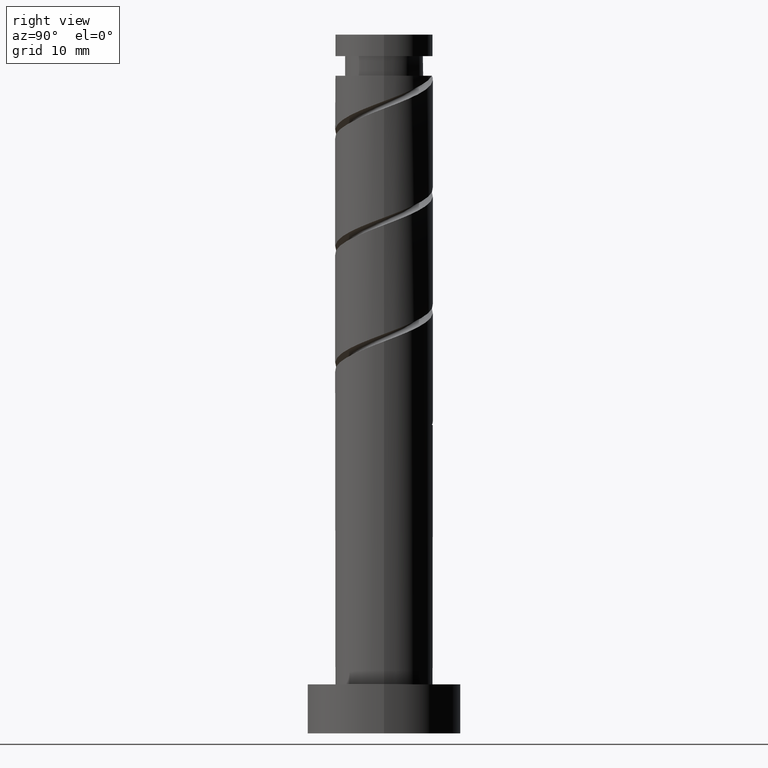
[diagram: clean part render]
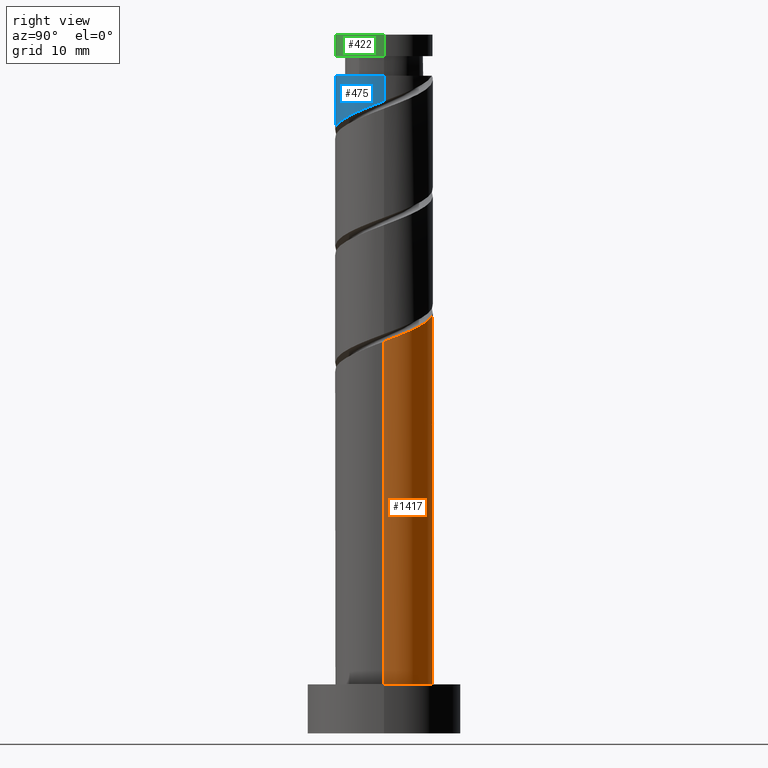
[diagram: same view with three faces highlighted in distinct colors, each labeled with its STEP entity id]
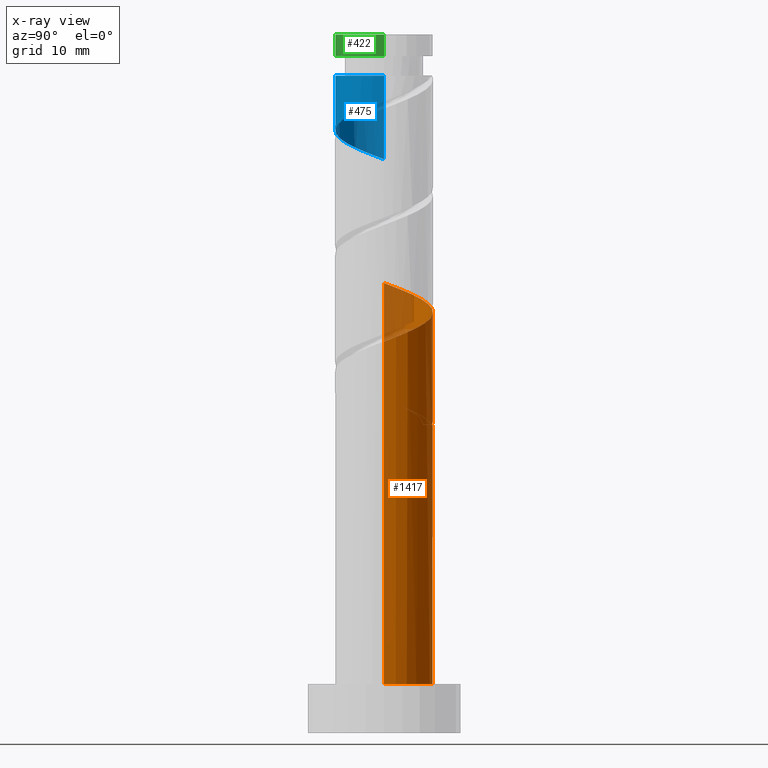
[diagram: x-ray of the same camera — body ghosted, the three highlighted faces saturated]
A machine part, right view with three faces highlighted in distinct colors.
The next image is the same camera in x-ray (body ghosted, the three faces saturated) — at least one of them is partly hidden behind the body in this view.
Their STEP definitions:

[orange] entity #1417 — the highlighted cylindrical surface (partial cylindrical patch) has radius 7 mm, axis along (-0, -0, -1).
#13 = CARTESIAN_POINT ( 'NONE',  ( 0.000000000000000000, 0.000000000000000000, 44.12573029265075064 ) ) ;
#27 = CARTESIAN_POINT ( 'NONE',  ( 0.000000000000000000, 0.000000000000000000, 7.000000000000000000 ) ) ;
#40 = CARTESIAN_POINT ( 'NONE',  ( 5.244443063986624409, 4.636358155772994039, 58.01461918153964348 ) ) ;
#54 = CARTESIAN_POINT ( 'NONE',  ( 7.000000000000000000, 8.572527594031471218E-16, 100.0000000000000000 ) ) ;
#73 = CARTESIAN_POINT ( 'NONE',  ( -4.426928028896098155, 5.561094966743196366, 46.44054510746557440 ) ) ;
#98 = ORIENTED_EDGE ( 'NONE', *, *, #1397, .F. ) ;
#106 = ORIENTED_EDGE ( 'NONE', *, *, #1130, .F. ) ;
#174 = CARTESIAN_POINT ( 'NONE',  ( -7.000000000000007994, 5.109126559037642631E-15, 64.42820873766198986 ) ) ;
#201 = AXIS2_PLACEMENT_3D ( 'NONE', #27, #722, #1045 ) ;
#218 = VERTEX_POINT ( 'NONE', #540 ) ;
#234 = ORIENTED_EDGE ( 'NONE', *, *, #367, .T. ) ;
#237 = DIRECTION ( 'NONE',  ( -1.000000000000000000, 0.000000000000000000, 0.000000000000000000 ) ) ;
#240 = FACE_OUTER_BOUND ( 'NONE', #602, .T. ) ;
#279 = EDGE_CURVE ( 'NONE', #1035, #457, #328, .T. ) ;
#291 = CARTESIAN_POINT ( 'NONE',  ( -2.602585499609340047, 6.614379617121000088, 61.25535992228037685 ) ) ;
#302 = VECTOR ( 'NONE', #1375, 1000.000000000000000 ) ;
#312 = CARTESIAN_POINT ( 'NONE',  ( -6.965826557536212604, 1.414471410982078847, 48.29239695931741494 ) ) ;
#328 = LINE ( 'NONE', #1011, #302 ) ;
#344 = CARTESIAN_POINT ( 'NONE',  ( -7.000000000000007994, 5.109126559037642631E-15, 47.76154207099533267 ) ) ;
#346 = ORIENTED_EDGE ( 'NONE', *, *, #1284, .F. ) ;
#352 = VECTOR ( 'NONE', #897, 1000.000000000000000 ) ;
#363 = CARTESIAN_POINT ( 'NONE',  ( -4.707881453605410549, 5.325347051691633027, 45.51461918153962216 ) ) ;
#367 = EDGE_CURVE ( 'NONE', #1340, #457, #846, .T. ) ;
#381 = EDGE_CURVE ( 'NONE', #450, #218, #1083, .T. ) ;
#448 = CARTESIAN_POINT ( 'NONE',  ( 7.000000000000000000, 8.572527594031471218E-16, 7.000000000000000000 ) ) ;
#450 = VERTEX_POINT ( 'NONE', #1181 ) ;
#456 = CARTESIAN_POINT ( 'NONE',  ( -6.999999999999999112, -3.256694707222844778E-15, 48.82325184763951853 ) ) ;
#457 = VERTEX_POINT ( 'NONE', #1068 ) ;
#509 = CARTESIAN_POINT ( 'NONE',  ( 6.997670043020832509, 0.1805933803021418649, 56.16276732968780294 ) ) ;
#530 = CARTESIAN_POINT ( 'NONE',  ( 2.257945103930814490, 6.739818462673709654, 59.40350807042851500 ) ) ;
#540 = CARTESIAN_POINT ( 'NONE',  ( 1.392982411949269972, 6.860000000000000320, 44.12573029265075064 ) ) ;
#554 = CARTESIAN_POINT ( 'NONE',  ( -6.997670043020821851, 0.1805933803021427253, 48.75535992228037685 ) ) ;
#581 = CARTESIAN_POINT ( 'NONE',  ( -7.000000000000007994, 5.109126559037642631E-15, 47.76154207099533267 ) ) ;
#582 = DIRECTION ( 'NONE',  ( 0.000000000000000000, -0.000000000000000000, -1.000000000000000000 ) ) ;
#594 = CYLINDRICAL_SURFACE ( 'NONE', #921, 7.000000000000000000 ) ;
#601 = CARTESIAN_POINT ( 'NONE',  ( -7.000000000000000000, -3.256694707222844778E-15, 48.82325184763951853 ) ) ;
#602 = EDGE_LOOP ( 'NONE', ( #1053, #1331, #234, #656, #106, #1458, #98, #346 ) ) ;
#620 = CARTESIAN_POINT ( 'NONE',  ( -3.655233476607375742, 5.969863334406318778, 61.71832288524336718 ) ) ;
#622 = EDGE_CURVE ( 'NONE', #671, #994, #1334, .T. ) ;
#623 = EDGE_CURVE ( 'NONE', #671, #1340, #634, .T. ) ;
#634 = LINE ( 'NONE', #54, #1111 ) ;
#635 = CARTESIAN_POINT ( 'NONE',  ( 7.000000000000007994, -5.064309659396961306E-15, 56.09487540432866837 ) ) ;
#656 = ORIENTED_EDGE ( 'NONE', *, *, #279, .F. ) ;
#671 = VERTEX_POINT ( 'NONE', #635 ) ;
#700 = CARTESIAN_POINT ( 'NONE',  ( -6.637425475935892827, 2.223641844227019160, 46.90350807042854342 ) ) ;
#709 = CARTESIAN_POINT ( 'NONE',  ( -2.602585499609340047, 6.614379617121000088, 44.58869325561371255 ) ) ;
#715 =( BOUNDED_CURVE ( )  B_SPLINE_CURVE ( 2, ( #456, #915, #554, #312, #762, #1108, #1460, #73, #1007, #1350, #779, #991, #1343 ),
 .UNSPECIFIED., .F., .T. ) 
 B_SPLINE_CURVE_WITH_KNOTS ( ( 3, 2, 2, 2, 2, 2, 3 ),
 ( 0.9295248053855290626, 0.9305555555555555802, 0.9444444444444444198, 0.9583333333333333703, 0.9722222222222222099, 0.9861111111111111605, 1.000000000000000000 ),
 .UNSPECIFIED. ) 
 CURVE ( )  GEOMETRIC_REPRESENTATION_ITEM ( )  RATIONAL_B_SPLINE_CURVE ( ( 0.9071930855141210337, 0.9080659294509687562, 0.9090909090909088386, 0.8952797754656434126, 0.9090909090909088386, 0.8952797754656434126, 0.9090909090909088386, 0.8952797754656434126, 0.9090909090909088386, 0.8952797754656434126, 0.9090909090909088386, 0.8952797754656434126, 0.9090909090909088386 ) ) 
 REPRESENTATION_ITEM ( '' )  );
#722 = DIRECTION ( 'NONE',  ( 0.000000000000000000, 0.000000000000000000, 1.000000000000000000 ) ) ;
#732 = CARTESIAN_POINT ( 'NONE',  ( 3.342436566413459431, 6.150456714708457895, 58.94054510746557440 ) ) ;
#745 = CARTESIAN_POINT ( 'NONE',  ( -5.476609438485875003, 4.359673044883936477, 62.64424881116928390 ) ) ;
#752 = CARTESIAN_POINT ( 'NONE',  ( 7.000000000000007994, -5.064309659396961306E-15, 56.09487540432866837 ) ) ;
#758 = DIRECTION ( 'NONE',  ( -0.000000000000000000, -0.000000000000000000, -1.000000000000000000 ) ) ;
#762 = CARTESIAN_POINT ( 'NONE',  ( -6.513892328306671864, 2.563046377892427063, 47.82943399635445303 ) ) ;
#779 = CARTESIAN_POINT ( 'NONE',  ( -1.037282889820803966, 6.922719422776355103, 45.05165621857668157 ) ) ;
#822 = AXIS2_PLACEMENT_3D ( 'NONE', #13, #582, #237 ) ;
#837 = CARTESIAN_POINT ( 'NONE',  ( -3.655233476607375742, 5.969863334406318778, 45.05165621857668157 ) ) ;
#846 = CIRCLE ( 'NONE', #201, 7.000000000000000000 ) ;
#852 = CARTESIAN_POINT ( 'NONE',  ( 1.037282889820811738, 6.922719422776364873, 59.86647103339150533 ) ) ;
#858 = CARTESIAN_POINT ( 'NONE',  ( 7.000000000000007994, 0.09031172032414480633, 56.12889277826103296 ) ) ;
#897 = DIRECTION ( 'NONE',  ( -0.000000000000000000, -0.000000000000000000, -1.000000000000000000 ) ) ;
#915 = CARTESIAN_POINT ( 'NONE',  ( -6.999999999999999112, 0.09031172032414620798, 48.78923447370715394 ) ) ;
#921 = AXIS2_PLACEMENT_3D ( 'NONE', #935, #1034, #923 ) ;
#923 = DIRECTION ( 'NONE',  ( -1.000000000000000000, 0.000000000000000000, 0.000000000000000000 ) ) ;
#926 = CARTESIAN_POINT ( 'NONE',  ( -5.476609438485875003, 4.359673044883936477, 45.97758214450260539 ) ) ;
#935 = CARTESIAN_POINT ( 'NONE',  ( 0.000000000000000000, 0.000000000000000000, 100.0000000000000000 ) ) ;
#953 = CARTESIAN_POINT ( 'NONE',  ( -7.000000000000011546, 1.141380602743200079, 47.33162255862968237 ) ) ;
#986 = CARTESIAN_POINT ( 'NONE',  ( -1.392982411949267307, 6.860000000000010978, 60.79239695931742204 ) ) ;
#991 = CARTESIAN_POINT ( 'NONE',  ( 0.1833793242891982034, 7.105620382879008545, 44.58869325561371966 ) ) ;
#994 = VERTEX_POINT ( 'NONE', #1476 ) ;
#1007 = CARTESIAN_POINT ( 'NONE',  ( -3.342436566413451438, 6.150456714708449901, 45.97758214450260539 ) ) ;
#1011 = CARTESIAN_POINT ( 'NONE',  ( -7.000000000000000000, 0.000000000000000000, 100.0000000000000000 ) ) ;
#1034 = DIRECTION ( 'NONE',  ( -0.000000000000000000, -0.000000000000000000, -1.000000000000000000 ) ) ;
#1035 = VERTEX_POINT ( 'NONE', #344 ) ;
#1037 = CARTESIAN_POINT ( 'NONE',  ( -6.245337423366338570, 3.393999038076239927, 46.44054510746557440 ) ) ;
#1045 = DIRECTION ( 'NONE',  ( 1.000000000000000000, 0.000000000000000000, 0.000000000000000000 ) ) ;
#1053 = ORIENTED_EDGE ( 'NONE', *, *, #622, .F. ) ;
#1068 = CARTESIAN_POINT ( 'NONE',  ( -7.000000000000000000, 0.000000000000000000, 7.000000000000000000 ) ) ;
#1074 = CARTESIAN_POINT ( 'NONE',  ( -6.637425475935892827, 2.223641844227019160, 63.57017473709519351 ) ) ;
#1083 = CIRCLE ( 'NONE', #822, 7.000000000000000000 ) ;
#1103 = CARTESIAN_POINT ( 'NONE',  ( -6.245337423366338570, 3.393999038076239927, 63.10721177413223870 ) ) ;
#1108 = CARTESIAN_POINT ( 'NONE',  ( -6.061958099077131124, 3.711621344802776612, 47.36647103339148401 ) ) ;
#1111 = VECTOR ( 'NONE', #758, 1000.000000000000000 ) ;
#1129 =( BOUNDED_CURVE ( )  B_SPLINE_CURVE ( 2, ( #1160, #709, #837, #363, #926, #1037, #700, #953, #581 ),
 .UNSPECIFIED., .F., .T. ) 
 B_SPLINE_CURVE_WITH_KNOTS ( ( 3, 2, 2, 2, 3 ),
 ( 0.000000000000000000, 0.01388888888888883955, 0.02777777777777779011, 0.04166666666666662966, 0.05452480538552906264 ),
 .UNSPECIFIED. ) 
 CURVE ( )  GEOMETRIC_REPRESENTATION_ITEM ( )  RATIONAL_B_SPLINE_CURVE ( ( 0.9090909090909143897, 0.8952797754656489637, 0.9090909090909143897, 0.8952797754656489637, 0.9090909090909143897, 0.8952797754656489637, 0.9090909090909143897, 0.8963047551055890461, 0.9071930855141266958 ) ) 
 REPRESENTATION_ITEM ( '' )  );
#1130 = EDGE_CURVE ( 'NONE', #450, #1035, #1129, .T. ) ;
#1160 = CARTESIAN_POINT ( 'NONE',  ( -1.392982411949267307, 6.860000000000010090, 44.12573029265075064 ) ) ;
#1181 = CARTESIAN_POINT ( 'NONE',  ( -1.392982411949267307, 6.860000000000010090, 44.12573029265075064 ) ) ;
#1191 = CARTESIAN_POINT ( 'NONE',  ( -4.707881453605410549, 5.325347051691633027, 62.18128584820630067 ) ) ;
#1203 = CARTESIAN_POINT ( 'NONE',  ( -7.000000000000011546, 1.141380602743200079, 63.99828922529638930 ) ) ;
#1224 = CARTESIAN_POINT ( 'NONE',  ( -7.000000000000000000, 0.000000000000000000, 100.0000000000000000 ) ) ;
#1284 = EDGE_CURVE ( 'NONE', #994, #1449, #1364, .T. ) ;
#1316 = CARTESIAN_POINT ( 'NONE',  ( -0.1833793242891972319, 7.105620382879017427, 60.32943399635445303 ) ) ;
#1331 = ORIENTED_EDGE ( 'NONE', *, *, #623, .T. ) ;
#1332 = CARTESIAN_POINT ( 'NONE',  ( 6.513892328306682522, 2.563046377892426619, 57.08869325561373387 ) ) ;
#1334 =( BOUNDED_CURVE ( )  B_SPLINE_CURVE ( 2, ( #752, #858, #509, #1420, #1332, #1441, #40, #1434, #732, #530, #852, #1316, #986, #291, #620, #1191, #745, #1103, #1074, #1203, #174 ),
 .UNSPECIFIED., .F., .T. ) 
 B_SPLINE_CURVE_WITH_KNOTS ( ( 3, 2, 2, 2, 2, 2, 2, 2, 2, 2, 3 ),
 ( 0.1795248053855290626, 0.1805555555555555802, 0.1944444444444444198, 0.2083333333333333703, 0.2222222222222222099, 0.2361111111111111605, 0.2500000000000000000, 0.2638888888888888395, 0.2777777777777777901, 0.2916666666666666297, 0.3045248053855290626 ),
 .UNSPECIFIED. ) 
 CURVE ( )  GEOMETRIC_REPRESENTATION_ITEM ( )  RATIONAL_B_SPLINE_CURVE ( ( 0.9071930855141266958, 0.9080659294509743074, 0.9090909090909143897, 0.8952797754656489637, 0.9090909090909143897, 0.8952797754656489637, 0.9090909090909143897, 0.8952797754656489637, 0.9090909090909143897, 0.8952797754656489637, 0.9090909090909143897, 0.8952797754656489637, 0.9090909090909143897, 0.8952797754656489637, 0.9090909090909143897, 0.8952797754656489637, 0.9090909090909143897, 0.8952797754656489637, 0.9090909090909143897, 0.8963047551055890461, 0.9071930855141266958 ) ) 
 REPRESENTATION_ITEM ( '' )  );
#1340 = VERTEX_POINT ( 'NONE', #448 ) ;
#1343 = CARTESIAN_POINT ( 'NONE',  ( 1.392982411949269972, 6.860000000000000320, 44.12573029265075775 ) ) ;
#1350 = CARTESIAN_POINT ( 'NONE',  ( -2.257945103930805608, 6.739818462673704325, 45.51461918153964348 ) ) ;
#1364 = LINE ( 'NONE', #1224, #352 ) ;
#1375 = DIRECTION ( 'NONE',  ( -0.000000000000000000, -0.000000000000000000, -1.000000000000000000 ) ) ;
#1397 = EDGE_CURVE ( 'NONE', #1449, #218, #715, .T. ) ;
#1417 = ADVANCED_FACE ( 'NONE', ( #240 ), #594, .T. ) ;
#1420 = CARTESIAN_POINT ( 'NONE',  ( 6.965826557536219710, 1.414471410982078181, 56.62573029265075775 ) ) ;
#1434 = CARTESIAN_POINT ( 'NONE',  ( 4.426928028896106149, 5.561094966743203472, 58.47758214450259118 ) ) ;
#1441 = CARTESIAN_POINT ( 'NONE',  ( 6.061958099077144446, 3.711621344802775724, 57.55165621857666025 ) ) ;
#1449 = VERTEX_POINT ( 'NONE', #601 ) ;
#1458 = ORIENTED_EDGE ( 'NONE', *, *, #381, .T. ) ;
#1460 = CARTESIAN_POINT ( 'NONE',  ( -5.244443063986613751, 4.636358155772986933, 46.90350807042853631 ) ) ;
#1476 = CARTESIAN_POINT ( 'NONE',  ( -7.000000000000007994, 5.109126559037642631E-15, 64.42820873766198986 ) ) ;

[blue] entity #475 — the highlighted cylindrical surface (partial cylindrical patch) has radius 7 mm, axis along (-0, -0, -1).
#21 = CARTESIAN_POINT ( 'NONE',  ( 6.513892328306671864, -2.563046377892426175, 89.49610066302113864 ) ) ;
#56 = CARTESIAN_POINT ( 'NONE',  ( -1.392982411949268862, -6.860000000000000320, 85.79239695931742915 ) ) ;
#57 = CARTESIAN_POINT ( 'NONE',  ( 1.037282889820803522, -6.922719422776355103, 86.71832288524333876 ) ) ;
#88 =( BOUNDED_CURVE ( )  B_SPLINE_CURVE ( 2, ( #871, #801, #1385, #714, #21, #1429, #747, #406, #163, #388, #57, #948, #56, #474, #566, #1021, #365, #1059, #967, #1427, #385 ),
 .UNSPECIFIED., .F., .T. ) 
 B_SPLINE_CURVE_WITH_KNOTS ( ( 3, 2, 2, 2, 2, 2, 2, 2, 2, 2, 3 ),
 ( 0.3045248053855291182, 0.3055555555555555802, 0.3194444444444444198, 0.3333333333333333148, 0.3472222222222222099, 0.3611111111111111049, 0.3750000000000000000, 0.3888888888888888951, 0.4027777777777777901, 0.4166666666666666852, 0.4295248053855290626 ),
 .UNSPECIFIED. ) 
 CURVE ( )  GEOMETRIC_REPRESENTATION_ITEM ( )  RATIONAL_B_SPLINE_CURVE ( ( 0.9071930855141211447, 0.9080659294509687562, 0.9090909090909088386, 0.8952797754656434126, 0.9090909090909088386, 0.8952797754656434126, 0.9090909090909088386, 0.8952797754656434126, 0.9090909090909088386, 0.8952797754656434126, 0.9090909090909088386, 0.8952797754656434126, 0.9090909090909088386, 0.8952797754656434126, 0.9090909090909088386, 0.8952797754656434126, 0.9090909090909088386, 0.8952797754656434126, 0.9090909090909088386, 0.8963047551055834949, 0.9071930855141210337 ) ) 
 REPRESENTATION_ITEM ( '' )  );
#130 = ORIENTED_EDGE ( 'NONE', *, *, #1265, .F. ) ;
#163 = CARTESIAN_POINT ( 'NONE',  ( 3.342436566413451438, -6.150456714708449901, 87.64424881116927679 ) ) ;
#180 = EDGE_CURVE ( 'NONE', #238, #770, #88, .T. ) ;
#220 = DIRECTION ( 'NONE',  ( -1.000000000000000000, 0.000000000000000000, 0.000000000000000000 ) ) ;
#238 = VERTEX_POINT ( 'NONE', #1268 ) ;
#321 = DIRECTION ( 'NONE',  ( -0.000000000000000000, -0.000000000000000000, -1.000000000000000000 ) ) ;
#365 = CARTESIAN_POINT ( 'NONE',  ( -5.476609438485868786, -4.359673044883928483, 83.94054510746556730 ) ) ;
#385 = CARTESIAN_POINT ( 'NONE',  ( -6.999999999999999112, -4.003643034567533788E-15, 82.15658518097286844 ) ) ;
#388 = CARTESIAN_POINT ( 'NONE',  ( 2.257945103930804720, -6.739818462673704325, 87.18128584820630067 ) ) ;
#406 = CARTESIAN_POINT ( 'NONE',  ( 4.426928028896097267, -5.561094966743198142, 88.10721177413222449 ) ) ;
#474 = CARTESIAN_POINT ( 'NONE',  ( -2.602585499609340047, -6.614379617120990318, 85.32943399635443882 ) ) ;
#475 = ADVANCED_FACE ( 'NONE', ( #590 ), #496, .T. ) ;
#496 = CYLINDRICAL_SURFACE ( 'NONE', #942, 7.000000000000000000 ) ;
#545 = CARTESIAN_POINT ( 'NONE',  ( 7.000000000000000000, 8.572527594031471218E-16, 100.0000000000000000 ) ) ;
#548 = CARTESIAN_POINT ( 'NONE',  ( 7.000000000000001776, 8.572527594031473190E-16, 94.12573029265075775 ) ) ;
#566 = CARTESIAN_POINT ( 'NONE',  ( -3.655233476607372189, -5.969863334406306343, 84.86647103339150533 ) ) ;
#570 = ORIENTED_EDGE ( 'NONE', *, *, #956, .T. ) ;
#590 = FACE_OUTER_BOUND ( 'NONE', #1271, .T. ) ;
#658 = VECTOR ( 'NONE', #944, 1000.000000000000000 ) ;
#676 = LINE ( 'NONE', #545, #988 ) ;
#693 = ORIENTED_EDGE ( 'NONE', *, *, #1114, .T. ) ;
#706 = CIRCLE ( 'NONE', #1446, 7.000000000000000888 ) ;
#714 = CARTESIAN_POINT ( 'NONE',  ( 6.965826557536212604, -1.414471410982079513, 89.95906362598407213 ) ) ;
#747 = CARTESIAN_POINT ( 'NONE',  ( 5.244443063986612863, -4.636358155772989598, 88.57017473709521482 ) ) ;
#770 = VERTEX_POINT ( 'NONE', #918 ) ;
#801 = CARTESIAN_POINT ( 'NONE',  ( 7.000000000000000888, -0.09031172032415311912, 90.45590114037381113 ) ) ;
#802 = VERTEX_POINT ( 'NONE', #548 ) ;
#830 = CARTESIAN_POINT ( 'NONE',  ( -7.000000000000000000, 0.000000000000000000, 100.0000000000000000 ) ) ;
#871 = CARTESIAN_POINT ( 'NONE',  ( 7.000000000000000000, 1.478957688142484508E-15, 90.48991851430616862 ) ) ;
#918 = CARTESIAN_POINT ( 'NONE',  ( -6.999999999999999112, -4.003643034567533788E-15, 82.15658518097286844 ) ) ;
#942 = AXIS2_PLACEMENT_3D ( 'NONE', #954, #1383, #1275 ) ;
#944 = DIRECTION ( 'NONE',  ( -0.000000000000000000, -0.000000000000000000, -1.000000000000000000 ) ) ;
#948 = CARTESIAN_POINT ( 'NONE',  ( -0.1833793242892007846, -7.105620382879011210, 86.25535992228036264 ) ) ;
#954 = CARTESIAN_POINT ( 'NONE',  ( 0.000000000000000000, 0.000000000000000000, 100.0000000000000000 ) ) ;
#956 = EDGE_CURVE ( 'NONE', #802, #1131, #706, .T. ) ;
#967 = CARTESIAN_POINT ( 'NONE',  ( -6.637425475935883945, -2.223641844227012054, 83.01461918153967190 ) ) ;
#988 = VECTOR ( 'NONE', #1143, 1000.000000000000000 ) ;
#1021 = CARTESIAN_POINT ( 'NONE',  ( -4.707881453605404332, -5.325347051691625033, 84.40350807042854342 ) ) ;
#1046 = ORIENTED_EDGE ( 'NONE', *, *, #180, .F. ) ;
#1057 = LINE ( 'NONE', #830, #658 ) ;
#1059 = CARTESIAN_POINT ( 'NONE',  ( -6.245337423366332352, -3.393999038076235486, 83.47758214450260539 ) ) ;
#1114 = EDGE_CURVE ( 'NONE', #1131, #770, #1057, .T. ) ;
#1131 = VERTEX_POINT ( 'NONE', #1168 ) ;
#1143 = DIRECTION ( 'NONE',  ( -0.000000000000000000, -0.000000000000000000, -1.000000000000000000 ) ) ;
#1168 = CARTESIAN_POINT ( 'NONE',  ( -7.000000000000001776, 0.000000000000000000, 94.12573029265075775 ) ) ;
#1250 = CARTESIAN_POINT ( 'NONE',  ( 0.000000000000000000, 0.000000000000000000, 94.12573029265075775 ) ) ;
#1265 = EDGE_CURVE ( 'NONE', #802, #238, #676, .T. ) ;
#1268 = CARTESIAN_POINT ( 'NONE',  ( 7.000000000000000000, 1.478957688142484508E-15, 90.48991851430616862 ) ) ;
#1271 = EDGE_LOOP ( 'NONE', ( #130, #570, #693, #1046 ) ) ;
#1275 = DIRECTION ( 'NONE',  ( -1.000000000000000000, 0.000000000000000000, 0.000000000000000000 ) ) ;
#1383 = DIRECTION ( 'NONE',  ( -0.000000000000000000, -0.000000000000000000, -1.000000000000000000 ) ) ;
#1385 = CARTESIAN_POINT ( 'NONE',  ( 6.997670043020822739, -0.1805933803021450845, 90.42202658894704825 ) ) ;
#1427 = CARTESIAN_POINT ( 'NONE',  ( -7.000000000000001776, -1.141380602743196526, 82.58650469333846900 ) ) ;
#1429 = CARTESIAN_POINT ( 'NONE',  ( 6.061958099077131124, -3.711621344802780609, 89.03313770005814831 ) ) ;
#1446 = AXIS2_PLACEMENT_3D ( 'NONE', #1250, #321, #220 ) ;

[green] entity #422 — the highlighted cylindrical surface (partial cylindrical patch) has radius 7 mm, axis along (-0, -0, -1).
#34 = CYLINDRICAL_SURFACE ( 'NONE', #280, 7.000000000000000000 ) ;
#84 = CARTESIAN_POINT ( 'NONE',  ( 0.000000000000000000, 0.000000000000000000, 100.0000000000000000 ) ) ;
#85 = VECTOR ( 'NONE', #938, 1000.000000000000000 ) ;
#115 = ORIENTED_EDGE ( 'NONE', *, *, #132, .F. ) ;
#132 = EDGE_CURVE ( 'NONE', #1277, #895, #1151, .T. ) ;
#168 = CARTESIAN_POINT ( 'NONE',  ( -7.000000000000000888, 0.000000000000000000, 96.92573029265075490 ) ) ;
#208 = EDGE_CURVE ( 'NONE', #765, #568, #503, .T. ) ;
#227 = CARTESIAN_POINT ( 'NONE',  ( -7.000000000000000000, 0.000000000000000000, 100.0000000000000000 ) ) ;
#251 = ORIENTED_EDGE ( 'NONE', *, *, #908, .F. ) ;
#274 = EDGE_LOOP ( 'NONE', ( #115, #916, #1015, #251 ) ) ;
#280 = AXIS2_PLACEMENT_3D ( 'NONE', #1175, #1398, #605 ) ;
#422 = ADVANCED_FACE ( 'NONE', ( #727 ), #34, .T. ) ;
#443 = DIRECTION ( 'NONE',  ( 0.000000000000000000, 0.000000000000000000, 1.000000000000000000 ) ) ;
#503 = LINE ( 'NONE', #1204, #673 ) ;
#539 = DIRECTION ( 'NONE',  ( -0.000000000000000000, -0.000000000000000000, -1.000000000000000000 ) ) ;
#568 = VERTEX_POINT ( 'NONE', #168 ) ;
#605 = DIRECTION ( 'NONE',  ( -1.000000000000000000, 0.000000000000000000, 0.000000000000000000 ) ) ;
#662 = DIRECTION ( 'NONE',  ( 1.000000000000000000, 0.000000000000000000, 0.000000000000000000 ) ) ;
#673 = VECTOR ( 'NONE', #735, 1000.000000000000000 ) ;
#713 = EDGE_CURVE ( 'NONE', #765, #1277, #1308, .T. ) ;
#727 = FACE_OUTER_BOUND ( 'NONE', #274, .T. ) ;
#735 = DIRECTION ( 'NONE',  ( -0.000000000000000000, -0.000000000000000000, -1.000000000000000000 ) ) ;
#765 = VERTEX_POINT ( 'NONE', #227 ) ;
#795 = CARTESIAN_POINT ( 'NONE',  ( 7.000000000000000000, 8.572527594031471218E-16, 100.0000000000000000 ) ) ;
#895 = VERTEX_POINT ( 'NONE', #1243 ) ;
#908 = EDGE_CURVE ( 'NONE', #895, #568, #1470, .T. ) ;
#916 = ORIENTED_EDGE ( 'NONE', *, *, #713, .F. ) ;
#938 = DIRECTION ( 'NONE',  ( -0.000000000000000000, -0.000000000000000000, -1.000000000000000000 ) ) ;
#1015 = ORIENTED_EDGE ( 'NONE', *, *, #208, .T. ) ;
#1087 = AXIS2_PLACEMENT_3D ( 'NONE', #1126, #539, #1345 ) ;
#1126 = CARTESIAN_POINT ( 'NONE',  ( 0.000000000000000000, 0.000000000000000000, 96.92573029265075490 ) ) ;
#1139 = AXIS2_PLACEMENT_3D ( 'NONE', #84, #443, #662 ) ;
#1151 = LINE ( 'NONE', #1391, #85 ) ;
#1175 = CARTESIAN_POINT ( 'NONE',  ( 0.000000000000000000, 0.000000000000000000, 100.0000000000000000 ) ) ;
#1204 = CARTESIAN_POINT ( 'NONE',  ( -7.000000000000000000, 0.000000000000000000, 100.0000000000000000 ) ) ;
#1243 = CARTESIAN_POINT ( 'NONE',  ( 7.000000000000001776, 8.572527594031473190E-16, 96.92573029265075490 ) ) ;
#1277 = VERTEX_POINT ( 'NONE', #795 ) ;
#1308 = CIRCLE ( 'NONE', #1139, 7.000000000000000000 ) ;
#1345 = DIRECTION ( 'NONE',  ( -1.000000000000000000, 0.000000000000000000, 0.000000000000000000 ) ) ;
#1391 = CARTESIAN_POINT ( 'NONE',  ( 7.000000000000000000, 8.572527594031471218E-16, 100.0000000000000000 ) ) ;
#1398 = DIRECTION ( 'NONE',  ( -0.000000000000000000, -0.000000000000000000, -1.000000000000000000 ) ) ;
#1470 = CIRCLE ( 'NONE', #1087, 7.000000000000000888 ) ;